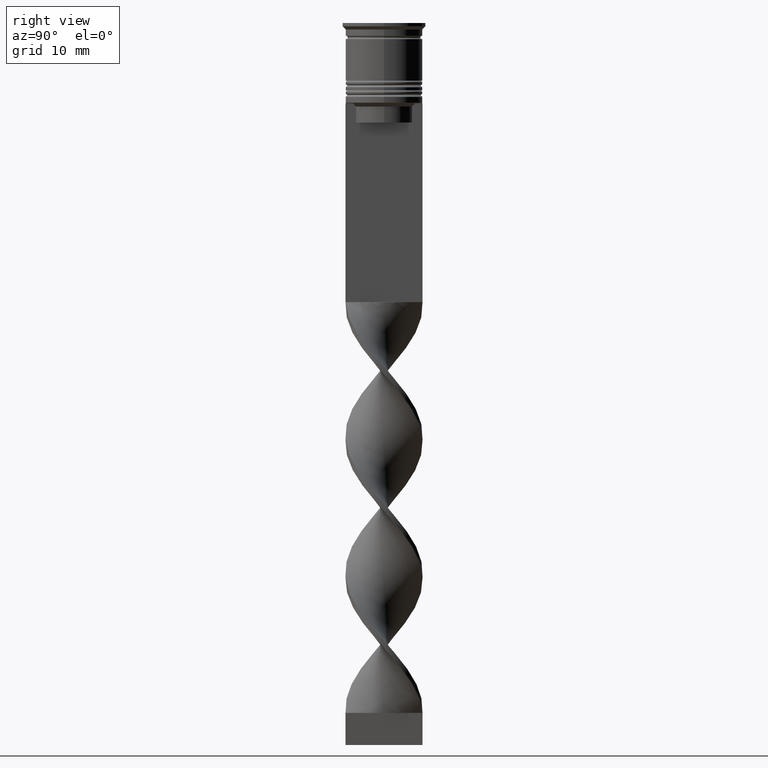
[diagram: clean part render]
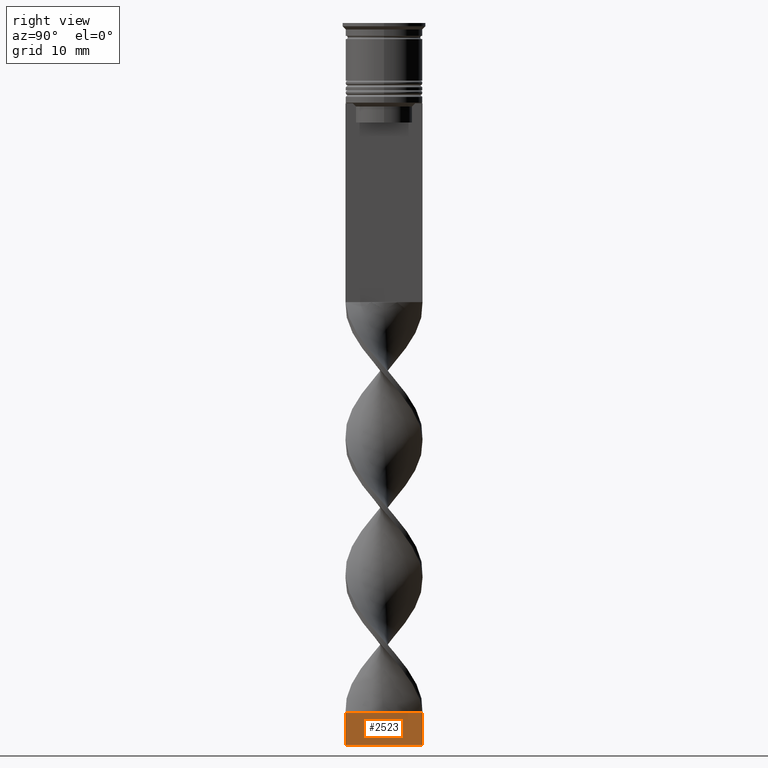
[diagram: same view with one face highlighted and labeled with its STEP entity id]
A machine part, right view. The second image highlights one B-rep face of the part: STEP entity #2523.
In plain terms, the highlighted planar face has unit normal (-1, 0, 0).
Its self-contained STEP definition (entity closure, byte-faithful):
#56 = VERTEX_POINT ( 'NONE', #1997 ) ;
#140 = CARTESIAN_POINT ( 'NONE',  ( 0.5000000000000005551, 6.000000000000000000, -112.5000000000000000 ) ) ;
#231 = AXIS2_PLACEMENT_3D ( 'NONE', #140, #3140, #3195 ) ;
#431 = VERTEX_POINT ( 'NONE', #1374 ) ;
#600 = FACE_OUTER_BOUND ( 'NONE', #2656, .T. ) ;
#675 = ORIENTED_EDGE ( 'NONE', *, *, #1258, .T. ) ;
#902 = LINE ( 'NONE', #1149, #2038 ) ;
#926 = VERTEX_POINT ( 'NONE', #1483 ) ;
#996 = VECTOR ( 'NONE', #2846, 1000.000000000000000 ) ;
#1108 = ORIENTED_EDGE ( 'NONE', *, *, #2020, .F. ) ;
#1149 = CARTESIAN_POINT ( 'NONE',  ( 0.5000000000000005551, 6.000000000000000000, -112.5000000000000000 ) ) ;
#1258 = EDGE_CURVE ( 'NONE', #2570, #56, #1857, .T. ) ;
#1374 = CARTESIAN_POINT ( 'NONE',  ( 0.4999999999999990563, -6.000000000000000000, -112.5000000000000000 ) ) ;
#1483 = CARTESIAN_POINT ( 'NONE',  ( 0.5000000000000005551, 6.000000000000000000, -112.5000000000000000 ) ) ;
#1746 = DIRECTION ( 'NONE',  ( -0.000000000000000000, -0.000000000000000000, 1.000000000000000000 ) ) ;
#1783 = CARTESIAN_POINT ( 'NONE',  ( 0.4999999999999990563, -6.000000000000000000, -107.5000000000000000 ) ) ;
#1857 = B_SPLINE_CURVE_WITH_KNOTS ( 'NONE', 3,
 ( #2761, #2359, #3473, #1783 ),
 .UNSPECIFIED., .F., .F.,
 ( 4, 4 ),
 ( 0.000000000000000000, 1.000000000000000000 ),
 .UNSPECIFIED. ) ;
#1876 = EDGE_CURVE ( 'NONE', #431, #56, #3165, .T. ) ;
#1997 = CARTESIAN_POINT ( 'NONE',  ( 0.4999999999999990563, -6.000000000000000000, -107.5000000000000000 ) ) ;
#2020 = EDGE_CURVE ( 'NONE', #926, #431, #902, .T. ) ;
#2038 = VECTOR ( 'NONE', #2853, 1000.000000000000000 ) ;
#2359 = CARTESIAN_POINT ( 'NONE',  ( 0.5000000000000000000, 2.000000000000000000, -107.5000000000000000 ) ) ;
#2505 = VECTOR ( 'NONE', #1746, 1000.000000000000000 ) ;
#2523 = ADVANCED_FACE ( 'NONE', ( #600 ), #3125, .F. ) ;
#2526 = ORIENTED_EDGE ( 'NONE', *, *, #1876, .F. ) ;
#2570 = VERTEX_POINT ( 'NONE', #3180 ) ;
#2656 = EDGE_LOOP ( 'NONE', ( #675, #2526, #1108, #2737 ) ) ;
#2671 = EDGE_CURVE ( 'NONE', #926, #2570, #2868, .T. ) ;
#2737 = ORIENTED_EDGE ( 'NONE', *, *, #2671, .T. ) ;
#2761 = CARTESIAN_POINT ( 'NONE',  ( 0.5000000000000005551, 6.000000000000000000, -107.5000000000000000 ) ) ;
#2846 = DIRECTION ( 'NONE',  ( -0.000000000000000000, -0.000000000000000000, 1.000000000000000000 ) ) ;
#2853 = DIRECTION ( 'NONE',  ( -1.264902534566421675E-16, -1.000000000000000000, 0.000000000000000000 ) ) ;
#2868 = LINE ( 'NONE', #2901, #996 ) ;
#2901 = CARTESIAN_POINT ( 'NONE',  ( 0.5000000000000005551, 6.000000000000000000, -112.5000000000000000 ) ) ;
#3125 = PLANE ( 'NONE',  #231 ) ;
#3140 = DIRECTION ( 'NONE',  ( -1.000000000000000000, 1.264902534566421675E-16, 0.000000000000000000 ) ) ;
#3142 = CARTESIAN_POINT ( 'NONE',  ( 0.4999999999999990563, -6.000000000000000000, -112.5000000000000000 ) ) ;
#3165 = LINE ( 'NONE', #3142, #2505 ) ;
#3180 = CARTESIAN_POINT ( 'NONE',  ( 0.5000000000000005551, 6.000000000000000000, -107.5000000000000000 ) ) ;
#3195 = DIRECTION ( 'NONE',  ( -1.264902534566421675E-16, -1.000000000000000000, 0.000000000000000000 ) ) ;
#3473 = CARTESIAN_POINT ( 'NONE',  ( 0.4999999999999995559, -2.000000000000000000, -107.5000000000000000 ) ) ;